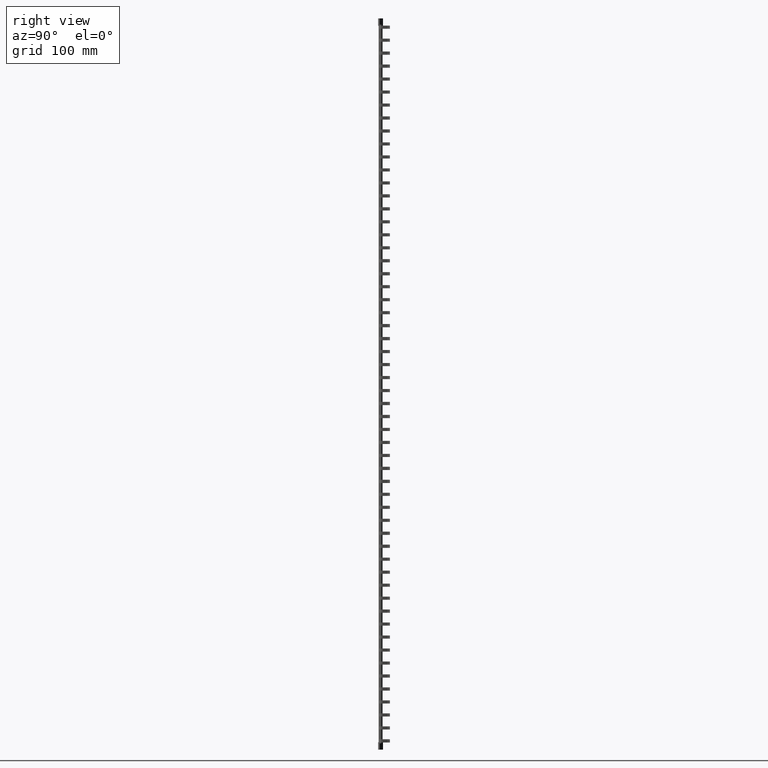
[diagram: clean part render]
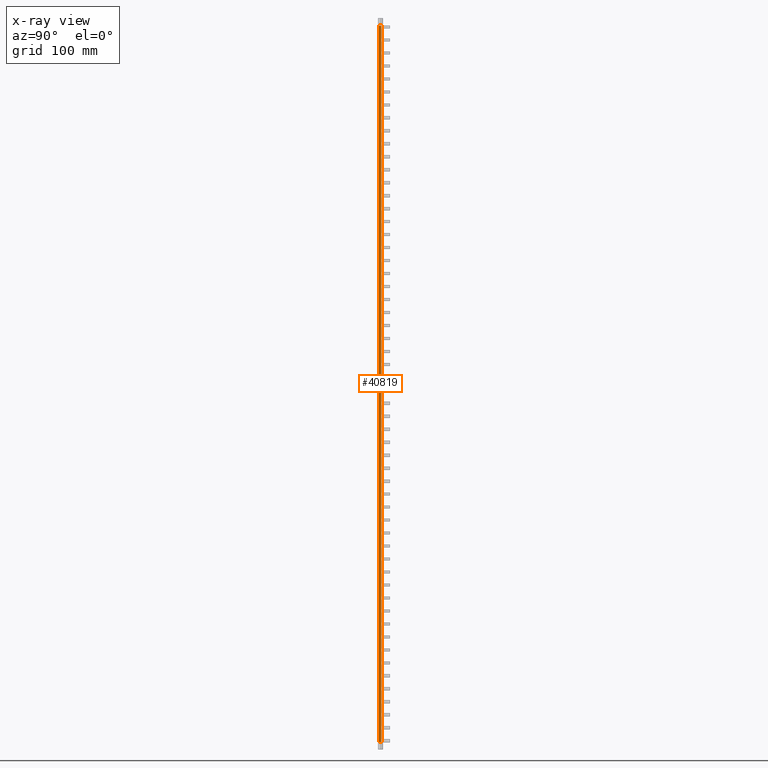
[diagram: x-ray — body ghosted, one internal face saturated and labeled with its STEP entity id]
A machine part, right view, then the same camera in x-ray: the body is ghosted and one INTERNAL B-rep face — a face not visible from any outside direction — is saturated and labeled: STEP entity #40819.
In plain terms, the highlighted planar face has unit normal (1, 0, -0).
Its self-contained STEP definition (entity closure, byte-faithful):
#5013 = ORIENTED_EDGE ( 'NONE', *, *, #72261, .F. ) ;
#5030 = ORIENTED_EDGE ( 'NONE', *, *, #70781, .F. ) ;
#5075 = ORIENTED_EDGE ( 'NONE', *, *, #70721, .F. ) ;
#5080 = ORIENTED_EDGE ( 'NONE', *, *, #70749, .F. ) ;
#7465 = CARTESIAN_POINT ( 'NONE',  ( -0.4999998735868435000, 3.615511274208506700, 209.9000000000000100 ) ) ;
#7471 = CARTESIAN_POINT ( 'NONE',  ( -0.4999998163000224900, 0.4999999980464860400, -761.8999999999999800 ) ) ;
#7483 = CARTESIAN_POINT ( 'NONE',  ( -0.4999998341542409900, 0.4999999960929714700, 209.9000000000000100 ) ) ;
#7485 = CARTESIAN_POINT ( 'NONE',  ( -0.4999998368468358500, 3.615511271367030300, -761.8999999999999800 ) ) ;
#26844 = LINE ( 'NONE', #26845, #70550 ) ;
#26845 = CARTESIAN_POINT ( 'NONE',  ( -0.4999999130909725300, -5.682891657254884900E-009, 209.9000000000000100 ) ) ;
#26854 = DIRECTION ( 'NONE',  ( -1.522599007603421600E-056, -1.000000000000000000, -3.939912114750718400E-031 ) ) ;
#26923 = LINE ( 'NONE', #26960, #69121 ) ;
#26960 = CARTESIAN_POINT ( 'NONE',  ( -0.4999999999999449300, 0.4999999971585251100, 219.0000000000000000 ) ) ;
#26963 = DIRECTION ( 'NONE',  ( -0.0000000000000000000, -0.0000000000000000000, -1.000000000000000000 ) ) ;
#27026 = CARTESIAN_POINT ( 'NONE',  ( -0.4999998530400069900, -5.682891657254884900E-009, -761.8999999999999800 ) ) ;
#27043 = DIRECTION ( 'NONE',  ( 1.522599007603421600E-056, 1.000000000000000000, -3.939912114750718400E-031 ) ) ;
#27054 = LINE ( 'NONE', #27026, #66987 ) ;
#30288 = VECTOR ( 'NONE', #31387, 1000.000000000000000 ) ;
#31387 = DIRECTION ( 'NONE',  ( 0.0000000000000000000, 0.0000000000000000000, 1.000000000000000000 ) ) ;
#31419 = CARTESIAN_POINT ( 'NONE',  ( -0.5000000000000559600, 3.615511272787768500, 219.0000000000000000 ) ) ;
#31423 = LINE ( 'NONE', #31419, #30288 ) ;
#40819 = ADVANCED_FACE ( 'NONE', ( #73725 ), #73747, .F. ) ;
#41920 = VERTEX_POINT ( 'NONE', #7471 ) ;
#41930 = VERTEX_POINT ( 'NONE', #7485 ) ;
#41962 = VERTEX_POINT ( 'NONE', #7483 ) ;
#41969 = VERTEX_POINT ( 'NONE', #7465 ) ;
#45933 = EDGE_LOOP ( 'NONE', ( #5013, #5030, #5080, #5075 ) ) ;
#66987 = VECTOR ( 'NONE', #27043, 1000.000000000000000 ) ;
#69121 = VECTOR ( 'NONE', #26963, 1000.000000000000000 ) ;
#70550 = VECTOR ( 'NONE', #26854, 1000.000000000000000 ) ;
#70721 = EDGE_CURVE ( 'NONE', #41969, #41962, #26844, .T. ) ;
#70749 = EDGE_CURVE ( 'NONE', #41962, #41920, #26923, .T. ) ;
#70781 = EDGE_CURVE ( 'NONE', #41920, #41930, #27054, .T. ) ;
#72261 = EDGE_CURVE ( 'NONE', #41930, #41969, #31423, .T. ) ;
#73725 = FACE_OUTER_BOUND ( 'NONE', #45933, .T. ) ;
#73732 = DIRECTION ( 'NONE',  ( 1.000000000000000000, 3.563533965728333600E-014, -0.0000000000000000000 ) ) ;
#73744 = CARTESIAN_POINT ( 'NONE',  ( -0.5000000000000559600, 3.615511274208504900, 219.0000000000000000 ) ) ;
#73747 = PLANE ( 'NONE',  #74925 ) ;
#73762 = DIRECTION ( 'NONE',  ( -3.563533965728333600E-014, 1.000000000000000000, 0.0000000000000000000 ) ) ;
#74925 = AXIS2_PLACEMENT_3D ( 'NONE', #73744, #73732, #73762 ) ;